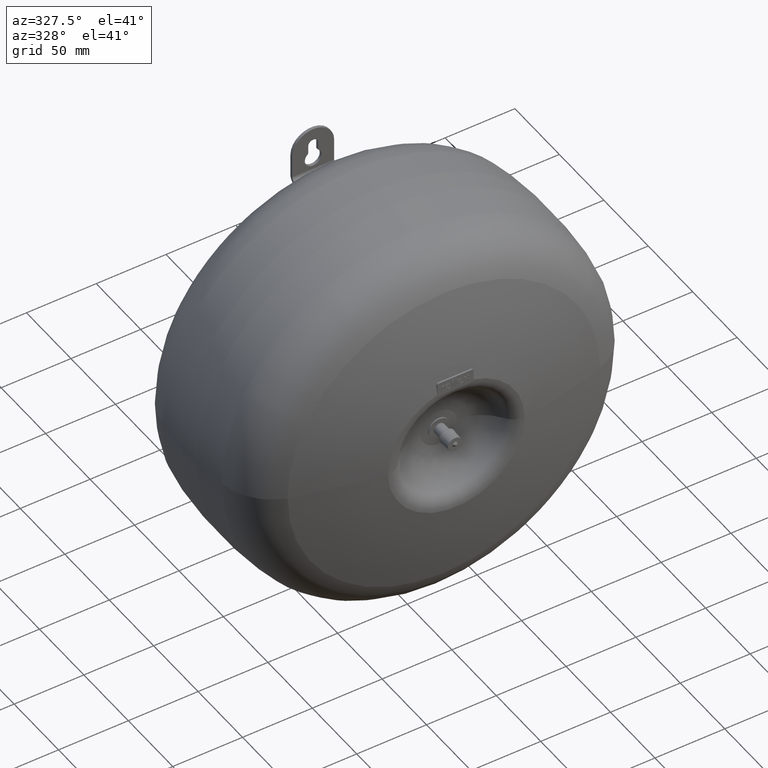
[diagram: clean part render]
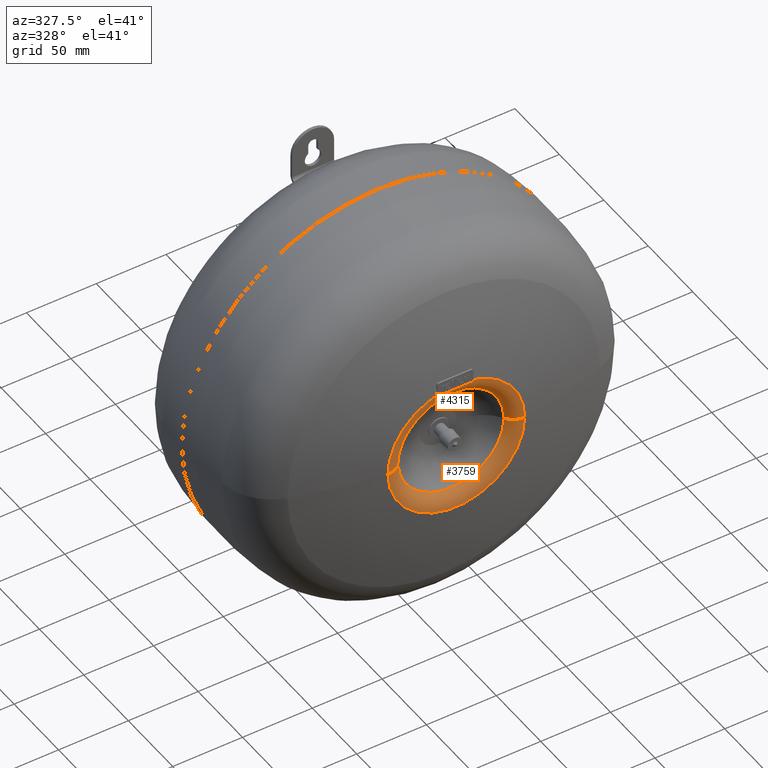
[diagram: same view with one multi-face feature highlighted, each face labeled with its STEP entity id]
A machine part, auxiliary view. The highlighted faces form ONE feature: a constant-radius fillet chain: 2 tangent blend faces with common blend radius 12 mm. The faces share edges in the B-rep.
Their STEP definitions:
[1] entity #3759 (Torus):
#3663=CARTESIAN_POINT('',(38.000000000000085,-98.999999999999972,160.50000000000006));
#3664=VERTEX_POINT('',#3663);
#3683=CARTESIAN_POINT('',(-38.000000000000099,-98.999999999999972,160.50000000000006));
#3684=VERTEX_POINT('',#3683);
#3720=CARTESIAN_POINT('',(-7.105427E-015,-93.014962898254367,160.50000000000006));
#3721=DIRECTION('',(-1.836910E-016,-1.0,0.0));
#3722=DIRECTION('',(1.0,0.0,0.0));
#3723=AXIS2_PLACEMENT_3D('',#3720,#3721,#3722);
#3724=TOROIDAL_SURFACE('',#3723,48.40092932822499,12.0);
#3725=CARTESIAN_POINT('',(49.000000000000085,-105.0,160.50000000000006));
#3726=VERTEX_POINT('',#3725);
#3727=CARTESIAN_POINT('',(48.400929328224983,-93.014962898254382,160.50000000000006));
#3728=DIRECTION('',(0.0,0.0,1.0));
#3729=DIRECTION('',(1.0,0.0,0.0));
#3730=AXIS2_PLACEMENT_3D('',#3727,#3728,#3729);
#3731=CIRCLE('',#3730,12.0);
#3732=EDGE_CURVE('',#3664,#3726,#3731,.T.);
#3733=ORIENTED_EDGE('',*,*,#3732,.F.);
#3734=CARTESIAN_POINT('',(-7.105427E-015,-98.999999999999972,160.50000000000006));
#3735=DIRECTION('',(0.0,-1.0,0.0));
#3736=DIRECTION('',(0.0,0.0,1.0));
#3737=AXIS2_PLACEMENT_3D('',#3734,#3735,#3736);
#3738=CIRCLE('',#3737,38.000000000000092);
#3739=EDGE_CURVE('',#3684,#3664,#3738,.T.);
#3740=ORIENTED_EDGE('',*,*,#3739,.F.);
#3741=CARTESIAN_POINT('',(-49.000000000000099,-104.99999999999997,160.50000000000006));
#3742=VERTEX_POINT('',#3741);
#3743=CARTESIAN_POINT('',(-48.400929328224997,-93.014962898254353,160.50000000000006));
#3744=DIRECTION('',(0.0,0.0,-1.0));
#3745=DIRECTION('',(-1.0,0.0,0.0));
#3746=AXIS2_PLACEMENT_3D('',#3743,#3744,#3745);
#3747=CIRCLE('',#3746,12.0);
#3748=EDGE_CURVE('',#3684,#3742,#3747,.T.);
#3749=ORIENTED_EDGE('',*,*,#3748,.T.);
#3750=CARTESIAN_POINT('',(-7.105427E-015,-104.99999999999997,160.50000000000006));
#3751=DIRECTION('',(0.0,-1.0,0.0));
#3752=DIRECTION('',(0.0,0.0,1.0));
#3753=AXIS2_PLACEMENT_3D('',#3750,#3751,#3752);
#3754=CIRCLE('',#3753,49.000000000000092);
#3755=EDGE_CURVE('',#3742,#3726,#3754,.T.);
#3756=ORIENTED_EDGE('',*,*,#3755,.T.);
#3757=EDGE_LOOP('',(#3733,#3740,#3749,#3756));
#3758=FACE_OUTER_BOUND('',#3757,.T.);
#3759=ADVANCED_FACE('',(#3758),#3724,.T.);
[2] entity #4315 (Torus):
#3663=CARTESIAN_POINT('',(38.000000000000085,-98.999999999999972,160.50000000000006));
#3664=VERTEX_POINT('',#3663);
#3674=CARTESIAN_POINT('',(-7.105427E-015,-98.999999999999972,198.50000000000014));
#3675=VERTEX_POINT('',#3674);
#3676=CARTESIAN_POINT('',(-7.105427E-015,-98.999999999999972,160.50000000000006));
#3677=DIRECTION('',(0.0,-1.0,0.0));
#3678=DIRECTION('',(0.0,0.0,1.0));
#3679=AXIS2_PLACEMENT_3D('',#3676,#3677,#3678);
#3680=CIRCLE('',#3679,38.000000000000092);
#3681=EDGE_CURVE('',#3664,#3675,#3680,.T.);
#3683=CARTESIAN_POINT('',(-38.000000000000099,-98.999999999999972,160.50000000000006));
#3684=VERTEX_POINT('',#3683);
#3685=CARTESIAN_POINT('',(-7.105427E-015,-98.999999999999972,160.50000000000006));
#3686=DIRECTION('',(0.0,-1.0,0.0));
#3687=DIRECTION('',(0.0,0.0,1.0));
#3688=AXIS2_PLACEMENT_3D('',#3685,#3686,#3687);
#3689=CIRCLE('',#3688,38.000000000000092);
#3690=EDGE_CURVE('',#3675,#3684,#3689,.T.);
#3725=CARTESIAN_POINT('',(49.000000000000085,-105.0,160.50000000000006));
#3726=VERTEX_POINT('',#3725);
#3727=CARTESIAN_POINT('',(48.400929328224983,-93.014962898254382,160.50000000000006));
#3728=DIRECTION('',(0.0,0.0,1.0));
#3729=DIRECTION('',(1.0,0.0,0.0));
#3730=AXIS2_PLACEMENT_3D('',#3727,#3728,#3729);
#3731=CIRCLE('',#3730,12.0);
#3732=EDGE_CURVE('',#3664,#3726,#3731,.T.);
#3741=CARTESIAN_POINT('',(-49.000000000000099,-104.99999999999997,160.50000000000006));
#3742=VERTEX_POINT('',#3741);
#3743=CARTESIAN_POINT('',(-48.400929328224997,-93.014962898254353,160.50000000000006));
#3744=DIRECTION('',(0.0,0.0,-1.0));
#3745=DIRECTION('',(-1.0,0.0,0.0));
#3746=AXIS2_PLACEMENT_3D('',#3743,#3744,#3745);
#3747=CIRCLE('',#3746,12.0);
#3748=EDGE_CURVE('',#3684,#3742,#3747,.T.);
#4283=CARTESIAN_POINT('',(-7.105427E-015,-104.99999999999997,209.50000000000014));
#4284=VERTEX_POINT('',#4283);
#4285=CARTESIAN_POINT('',(-7.105427E-015,-104.99999999999997,160.50000000000006));
#4286=DIRECTION('',(0.0,-1.0,0.0));
#4287=DIRECTION('',(0.0,0.0,1.0));
#4288=AXIS2_PLACEMENT_3D('',#4285,#4286,#4287);
#4289=CIRCLE('',#4288,49.000000000000092);
#4290=EDGE_CURVE('',#4284,#3742,#4289,.T.);
#4292=CARTESIAN_POINT('',(-7.105427E-015,-104.99999999999997,160.50000000000006));
#4293=DIRECTION('',(0.0,-1.0,0.0));
#4294=DIRECTION('',(0.0,0.0,1.0));
#4295=AXIS2_PLACEMENT_3D('',#4292,#4293,#4294);
#4296=CIRCLE('',#4295,49.000000000000092);
#4297=EDGE_CURVE('',#3726,#4284,#4296,.T.);
#4302=CARTESIAN_POINT('',(-7.105427E-015,-93.014962898254367,160.50000000000006));
#4303=DIRECTION('',(-1.836910E-016,-1.0,0.0));
#4304=DIRECTION('',(1.0,0.0,0.0));
#4305=AXIS2_PLACEMENT_3D('',#4302,#4303,#4304);
#4306=TOROIDAL_SURFACE('',#4305,48.40092932822499,12.0);
#4307=ORIENTED_EDGE('',*,*,#3732,.T.);
#4308=ORIENTED_EDGE('',*,*,#4297,.T.);
#4309=ORIENTED_EDGE('',*,*,#4290,.T.);
#4310=ORIENTED_EDGE('',*,*,#3748,.F.);
#4311=ORIENTED_EDGE('',*,*,#3690,.F.);
#4312=ORIENTED_EDGE('',*,*,#3681,.F.);
#4313=EDGE_LOOP('',(#4307,#4308,#4309,#4310,#4311,#4312));
#4314=FACE_OUTER_BOUND('',#4313,.T.);
#4315=ADVANCED_FACE('',(#4314),#4306,.T.);